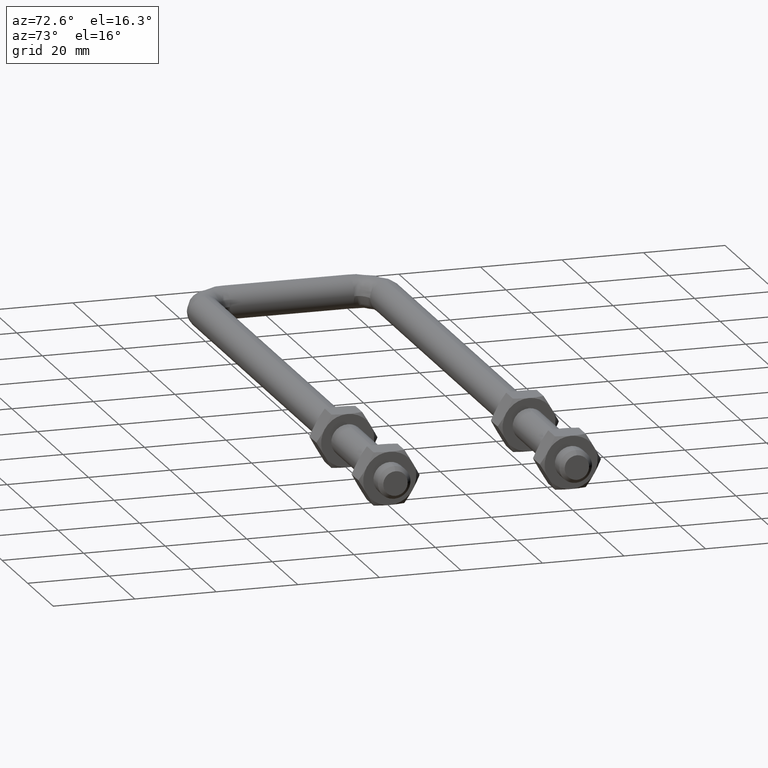
[diagram: clean part render]
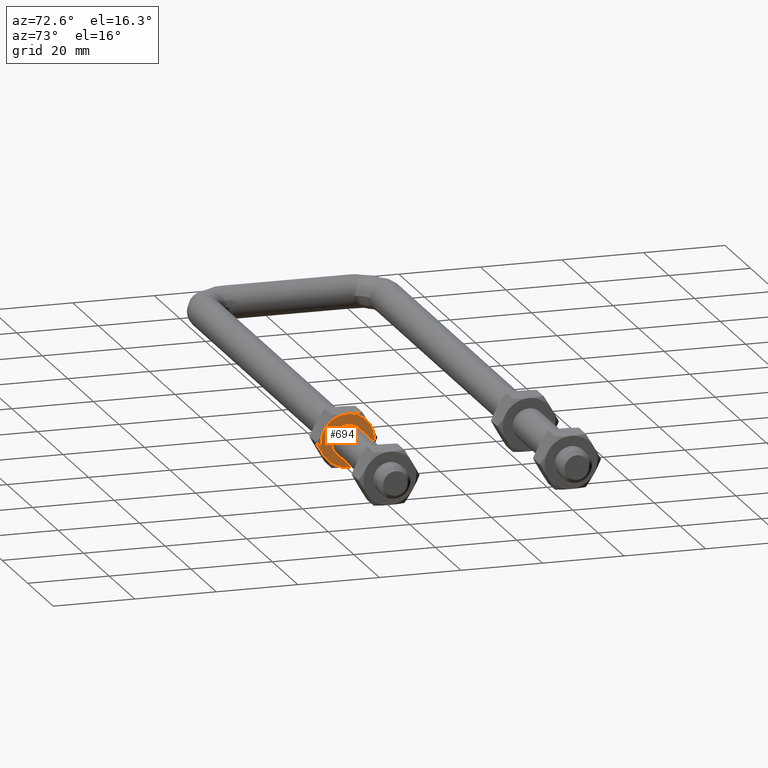
[diagram: same view with one face highlighted and labeled with its STEP entity id]
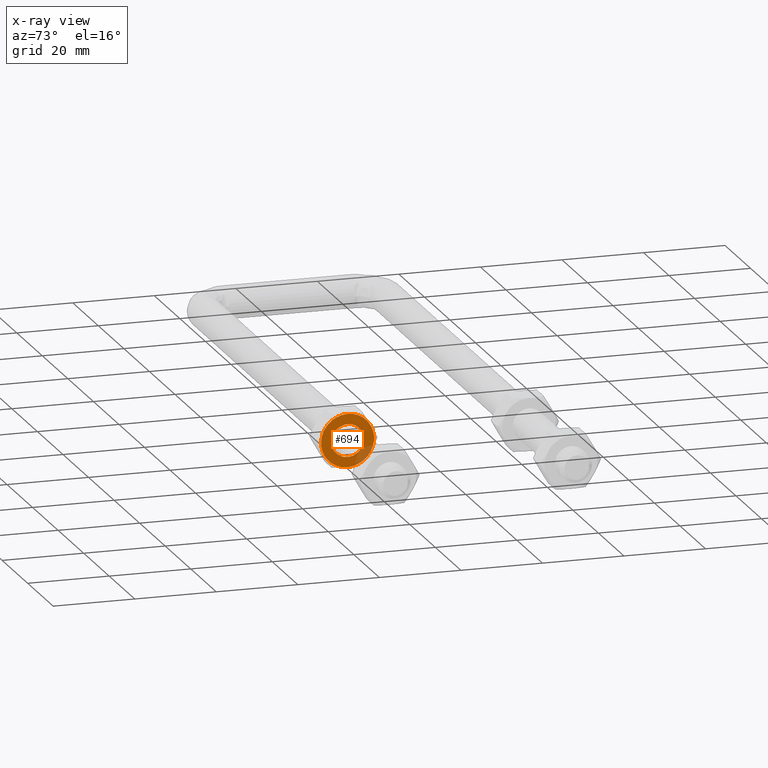
[diagram: x-ray of the same camera — body ghosted, the highlighted face saturated]
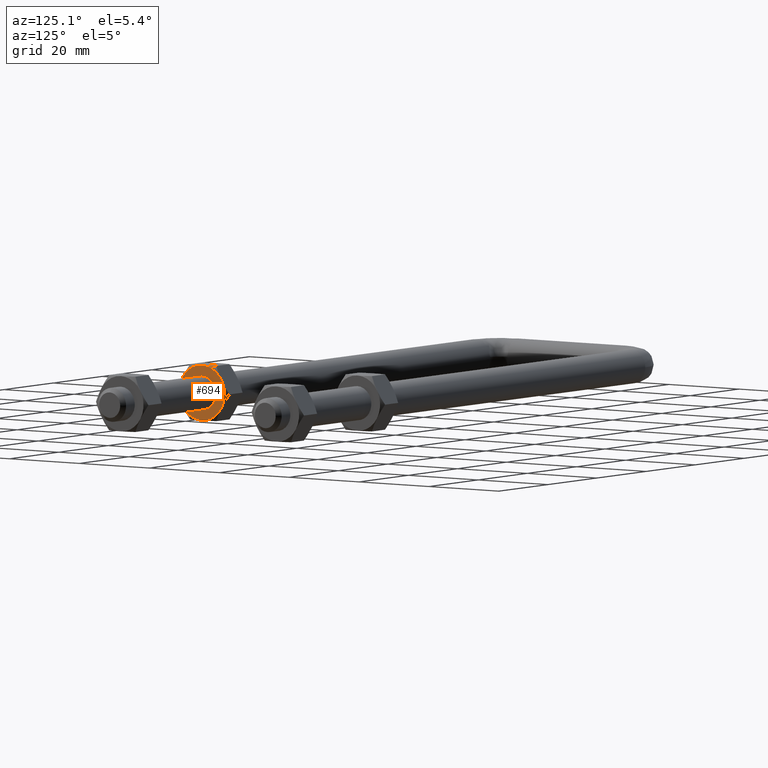
[diagram: same view with one face highlighted and labeled with its STEP entity id]
A machine part, auxiliary view. The second image highlights one B-rep face of the part: STEP entity #694.
The next image is the same camera in x-ray: the body ghosted, the highlighted face saturated — about 12% of this face is hidden behind the body in this view.
A second angle (auxiliary view) of the same face is appended — the face is thin or edge-on in the first view.
In plain terms, the highlighted planar face has unit normal (1, -0, -0).
Its self-contained STEP definition (entity closure, byte-faithful):
#17 = ORIENTED_EDGE ( 'NONE', *, *, #326, .T. ) ;
#21 = CARTESIAN_POINT ( 'NONE',  ( 0.0000000000000000000, 0.0000000000000000000, 0.0000000000000000000 ) ) ;
#43 = VERTEX_POINT ( 'NONE', #390 ) ;
#51 = VERTEX_POINT ( 'NONE', #608 ) ;
#52 = AXIS2_PLACEMENT_3D ( 'NONE', #1271, #817, #130 ) ;
#65 = EDGE_CURVE ( 'NONE', #51, #242, #244, .T. ) ;
#103 = CIRCLE ( 'NONE', #357, 6.500000000000000900 ) ;
#107 = VERTEX_POINT ( 'NONE', #1007 ) ;
#116 = DIRECTION ( 'NONE',  ( -1.072026073868730800E-021, -3.491728530692762600E-024, 1.000000000000000000 ) ) ;
#130 = DIRECTION ( 'NONE',  ( -1.000000000000000000, -2.144052147737447700E-021, 1.072026073868730600E-021 ) ) ;
#144 = CARTESIAN_POINT ( 'NONE',  ( -3.250000000294030600, 5.629165124379667900, 0.0000000000000000000 ) ) ;
#152 = DIRECTION ( 'NONE',  ( -1.072026073868730800E-021, -3.491728530692762600E-024, 1.000000000000000000 ) ) ;
#184 = DIRECTION ( 'NONE',  ( -1.072026073868730800E-021, -3.491728530692762600E-024, 1.000000000000000000 ) ) ;
#242 = VERTEX_POINT ( 'NONE', #1477 ) ;
#244 = CIRCLE ( 'NONE', #393, 6.500000000000000900 ) ;
#302 = DIRECTION ( 'NONE',  ( -1.000000000000000000, -2.144052147737447700E-021, 1.072026073868730600E-021 ) ) ;
#304 = DIRECTION ( 'NONE',  ( -1.000000000000000000, 1.776354695348102700E-015, 1.072026073868730600E-021 ) ) ;
#326 = EDGE_CURVE ( 'NONE', #499, #1194, #702, .T. ) ;
#329 = CIRCLE ( 'NONE', #52, 6.500000000000000900 ) ;
#357 = AXIS2_PLACEMENT_3D ( 'NONE', #1407, #796, #935 ) ;
#366 = DIRECTION ( 'NONE',  ( 1.000000000000000000, 2.144052147737447700E-021, -1.072026073868730800E-021 ) ) ;
#372 = DIRECTION ( 'NONE',  ( 1.000000000000000000, 2.144052147737447700E-021, -1.072026073868730800E-021 ) ) ;
#374 = CIRCLE ( 'NONE', #507, 4.000000000000000000 ) ;
#383 = CARTESIAN_POINT ( 'NONE',  ( -3.999999999999997300, 4.898501419833893300E-016, 0.0000000000000000000 ) ) ;
#390 = CARTESIAN_POINT ( 'NONE',  ( 3.999999999999997300, 8.574741630166381800E-021, 0.0000000000000000000 ) ) ;
#393 = AXIS2_PLACEMENT_3D ( 'NONE', #1254, #116, #304 ) ;
#400 = ORIENTED_EDGE ( 'NONE', *, *, #605, .F. ) ;
#440 = AXIS2_PLACEMENT_3D ( 'NONE', #1415, #1258, #1298 ) ;
#478 = CARTESIAN_POINT ( 'NONE',  ( -6.578000000000000300, -6.578000000000000300, 0.0000000000000000000 ) ) ;
#484 = EDGE_CURVE ( 'NONE', #107, #615, #329, .T. ) ;
#485 = FACE_OUTER_BOUND ( 'NONE', #1379, .T. ) ;
#499 = VERTEX_POINT ( 'NONE', #144 ) ;
#507 = AXIS2_PLACEMENT_3D ( 'NONE', #21, #850, #372 ) ;
#556 = CIRCLE ( 'NONE', #440, 4.000000000000000000 ) ;
#570 = ORIENTED_EDGE ( 'NONE', *, *, #1182, .T. ) ;
#605 = EDGE_CURVE ( 'NONE', #43, #884, #556, .T. ) ;
#608 = CARTESIAN_POINT ( 'NONE',  ( 6.500000000000000900, -1.333169685757695800E-009, 0.0000000000000000000 ) ) ;
#615 = VERTEX_POINT ( 'NONE', #1098 ) ;
#651 = EDGE_LOOP ( 'NONE', ( #400, #844 ) ) ;
#694 = ADVANCED_FACE ( 'NONE', ( #843, #485 ), #1262, .T. ) ;
#702 = CIRCLE ( 'NONE', #1050, 6.500000000000000900 ) ;
#724 = ORIENTED_EDGE ( 'NONE', *, *, #916, .T. ) ;
#740 = CARTESIAN_POINT ( 'NONE',  ( 0.0000000000000000000, 0.0000000000000000000, 0.0000000000000000000 ) ) ;
#796 = DIRECTION ( 'NONE',  ( -1.072026073868730800E-021, -3.491728530692762600E-024, 1.000000000000000000 ) ) ;
#817 = DIRECTION ( 'NONE',  ( -1.072026073868730800E-021, -3.491728530692762600E-024, 1.000000000000000000 ) ) ;
#843 = FACE_BOUND ( 'NONE', #651, .T. ) ;
#844 = ORIENTED_EDGE ( 'NONE', *, *, #1189, .F. ) ;
#845 = AXIS2_PLACEMENT_3D ( 'NONE', #478, #1206, #366 ) ;
#850 = DIRECTION ( 'NONE',  ( -1.072026073868730800E-021, -3.491728530692762600E-024, 1.000000000000000000 ) ) ;
#863 = CARTESIAN_POINT ( 'NONE',  ( 0.0000000000000000000, 0.0000000000000000000, 0.0000000000000000000 ) ) ;
#884 = VERTEX_POINT ( 'NONE', #383 ) ;
#896 = DIRECTION ( 'NONE',  ( -1.000000000000000000, -2.144052147737447700E-021, 1.072026073868730600E-021 ) ) ;
#916 = EDGE_CURVE ( 'NONE', #615, #51, #1390, .T. ) ;
#935 = DIRECTION ( 'NONE',  ( -1.000000000000000000, -8.881805637522729700E-016, 1.072026073868730600E-021 ) ) ;
#958 = AXIS2_PLACEMENT_3D ( 'NONE', #863, #152, #992 ) ;
#992 = DIRECTION ( 'NONE',  ( -1.000000000000000000, -2.144052147737447700E-021, 1.072026073868730600E-021 ) ) ;
#1007 = CARTESIAN_POINT ( 'NONE',  ( -3.249999999788567800, -5.629165124671497500, 0.0000000000000000000 ) ) ;
#1018 = CARTESIAN_POINT ( 'NONE',  ( 0.0000000000000000000, 0.0000000000000000000, 0.0000000000000000000 ) ) ;
#1050 = AXIS2_PLACEMENT_3D ( 'NONE', #740, #1123, #302 ) ;
#1054 = EDGE_CURVE ( 'NONE', #1194, #107, #1522, .T. ) ;
#1071 = AXIS2_PLACEMENT_3D ( 'NONE', #1018, #184, #896 ) ;
#1098 = CARTESIAN_POINT ( 'NONE',  ( 3.249999999139469700, -5.629165125046252900, 0.0000000000000000000 ) ) ;
#1123 = DIRECTION ( 'NONE',  ( -1.072026073868730800E-021, -3.491728530692762600E-024, 1.000000000000000000 ) ) ;
#1182 = EDGE_CURVE ( 'NONE', #242, #499, #103, .T. ) ;
#1189 = EDGE_CURVE ( 'NONE', #884, #43, #374, .T. ) ;
#1194 = VERTEX_POINT ( 'NONE', #1343 ) ;
#1206 = DIRECTION ( 'NONE',  ( 1.072026073868730800E-021, -3.491728530692762600E-024, 1.000000000000000000 ) ) ;
#1254 = CARTESIAN_POINT ( 'NONE',  ( 0.0000000000000000000, 0.0000000000000000000, 0.0000000000000000000 ) ) ;
#1258 = DIRECTION ( 'NONE',  ( -1.072026073868730800E-021, -3.491728530692762600E-024, 1.000000000000000000 ) ) ;
#1262 = PLANE ( 'NONE',  #845 ) ;
#1271 = CARTESIAN_POINT ( 'NONE',  ( 0.0000000000000000000, 0.0000000000000000000, 0.0000000000000000000 ) ) ;
#1298 = DIRECTION ( 'NONE',  ( 1.000000000000000000, 2.144052147737447700E-021, -1.072026073868730800E-021 ) ) ;
#1310 = ORIENTED_EDGE ( 'NONE', *, *, #65, .T. ) ;
#1343 = CARTESIAN_POINT ( 'NONE',  ( -6.500000000000000900, -7.295899995263255300E-011, 0.0000000000000000000 ) ) ;
#1379 = EDGE_LOOP ( 'NONE', ( #1429, #1488, #724, #1310, #570, #17 ) ) ;
#1390 = CIRCLE ( 'NONE', #1071, 6.500000000000000900 ) ;
#1407 = CARTESIAN_POINT ( 'NONE',  ( 0.0000000000000000000, 0.0000000000000000000, 0.0000000000000000000 ) ) ;
#1415 = CARTESIAN_POINT ( 'NONE',  ( 0.0000000000000000000, 0.0000000000000000000, 0.0000000000000000000 ) ) ;
#1429 = ORIENTED_EDGE ( 'NONE', *, *, #1054, .T. ) ;
#1477 = CARTESIAN_POINT ( 'NONE',  ( 3.249999998634008700, 5.629165125338082600, 0.0000000000000000000 ) ) ;
#1488 = ORIENTED_EDGE ( 'NONE', *, *, #484, .T. ) ;
#1522 = CIRCLE ( 'NONE', #958, 6.500000000000000900 ) ;